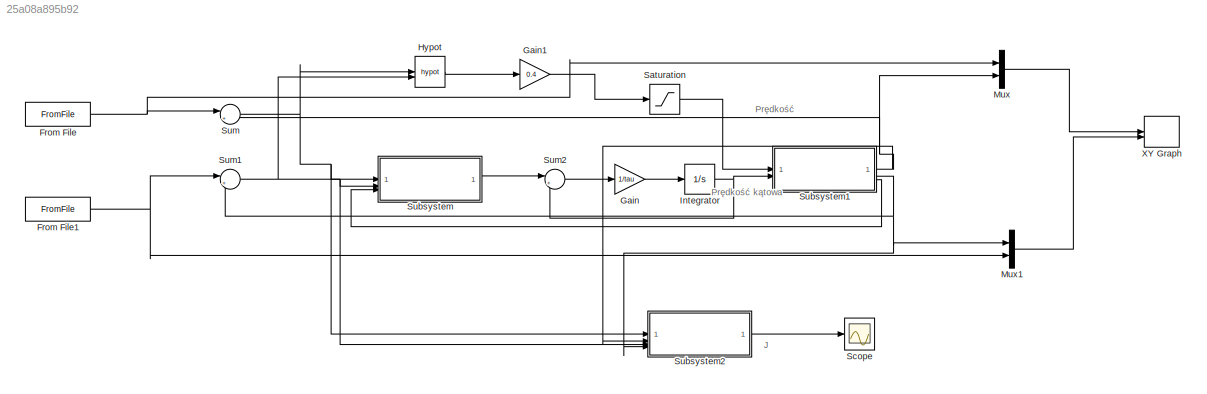
MODEL slx_25a08a895b92
KIND model
CONFIG AbsTol = auto
CONFIG EnableMultiTasking = off
CONFIG FixedStep = auto
CONFIG MaxStep = auto
CONFIG MinStep = auto
CONFIG RelTol = 1e-3
CONFIG SampleTimeConstraint = Unconstrained
CONFIG SolverName = VariableStepAuto
CONFIG StartTime = 0.0
CONFIG StopTime = 10.0
BLOCK [FromFile] From File
  SampleTime = 0
BLOCK [FromFile] From File1
  SampleTime = 0
BLOCK [Gain] Gain
  Gain = 1/tau
BLOCK [Gain] Gain1
  Gain = 0.4
BLOCK [Math] Hypot
  Operator = hypot
BLOCK [Integrator] Integrator
BLOCK [Mux] Mux
  DisplayOption = bar
  Inputs = 2
BLOCK [Mux] Mux1
  DisplayOption = bar
  Inputs = 2
BLOCK [Saturate] Saturation
BLOCK [Scope] Scope
  Floating = off
  NumInputPorts = 1
  ScopeSpecificationString = Simulink.scopes.TimeScopeBlockCfg('CurrentConfiguration', extmgr.ConfigurationSet(extmgr.Configuration('Core','General UI',true),extmgr.Configuration('Core','Source UI',true),extmgr.Configuration('Sources','WiredSimulink',true),extmgr.Configuration('Visuals','Time Domain',true),extmgr.Configuration('Tools','Plot Navigation',true),extmgr.Configuration('Tools','Measurements',true)),'Version','2023b'...<+1ch>
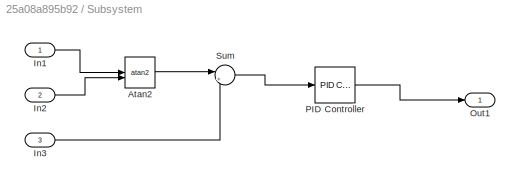
BLOCK [SubSystem] Subsystem
BLOCK [Trigonometry] Subsystem/Atan2
  Operator = atan2
BLOCK [Inport] Subsystem/In1
BLOCK [Inport] Subsystem/In2
  Port = 2
BLOCK [Inport] Subsystem/In3
  Port = 3
BLOCK [Outport] Subsystem/Out1
BLOCK [Reference] Subsystem/PID Controller  REF=slpidlib/PID Controller
  LibrarySourceBlock = simulink/Continuous/PID Controller
  SourceBlock = slpidlib/PID Controller
  SourceType = PID 1dof
BLOCK [Sum] Subsystem/Sum
  Inputs = |+-
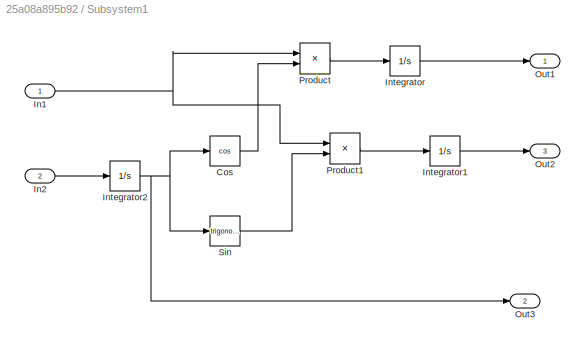
BLOCK [SubSystem] Subsystem1
BLOCK [Trigonometry] Subsystem1/Cos
  Operator = cos
BLOCK [Inport] Subsystem1/In1
BLOCK [Inport] Subsystem1/In2
  Port = 2
BLOCK [Integrator] Subsystem1/Integrator
BLOCK [Integrator] Subsystem1/Integrator1
BLOCK [Integrator] Subsystem1/Integrator2
BLOCK [Outport] Subsystem1/Out1
BLOCK [Outport] Subsystem1/Out2
  Port = 3
BLOCK [Outport] Subsystem1/Out3
  Port = 2
BLOCK [Product] Subsystem1/Product
BLOCK [Product] Subsystem1/Product1
BLOCK [Trigonometry] Subsystem1/Sin
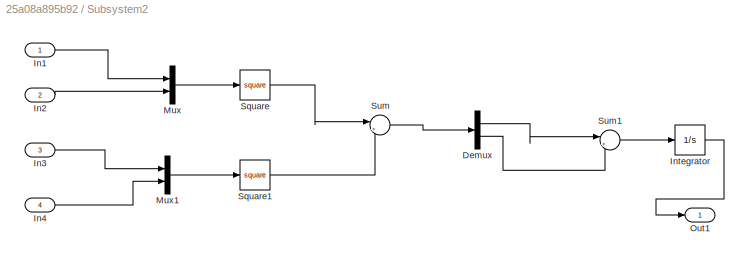
BLOCK [SubSystem] Subsystem2
BLOCK [Demux] Subsystem2/Demux
  Outputs = 2
BLOCK [Inport] Subsystem2/In1
BLOCK [Inport] Subsystem2/In2
  Port = 2
BLOCK [Inport] Subsystem2/In3
  Port = 3
BLOCK [Inport] Subsystem2/In4
  Port = 4
BLOCK [Integrator] Subsystem2/Integrator
BLOCK [Mux] Subsystem2/Mux
  DisplayOption = bar
  Inputs = 2
BLOCK [Mux] Subsystem2/Mux1
  DisplayOption = bar
  Inputs = 2
BLOCK [Outport] Subsystem2/Out1
BLOCK [Math] Subsystem2/Square
  Operator = square
BLOCK [Math] Subsystem2/Square1
  Operator = square
BLOCK [Sum] Subsystem2/Sum
  Inputs = |++
BLOCK [Sum] Subsystem2/Sum1
  Inputs = |++
BLOCK [Sum] Sum
  Inputs = |+-
BLOCK [Sum] Sum1
  Inputs = |+-
BLOCK [Sum] Sum2
  Inputs = |+-
BLOCK [Record] XY Graph
  CompatibilityTag = XY
  FileSettingsInternal = {"entries":[{"content":{"excelSettings":{"content":{},"type":"Streamout.ExcelSettings"}},"type":"Streamout.FileSettingStorage","uuid":""}],"packageUris":["http:\/\/schema.mathworks.com\/mf0\/streamout_blocks\/R2020a"],"version":"1.0"}
  Layout = [1 1]
  SignalsInternal = {"entries":[{"content":{"signals":[{"content":{"blockPath":[],"dimensions":[1],"domain":"","lineColor":"#a2142f","plots":[1],"port":1,"signalID":60,"signalName":"XY Graph:1"},"type":"RecordBlkView.Signal","uuid":""},{"content":{"blockPath":[],"dimensions":[1],"domain":"","lineColor":"#139fff","plots":[1],"port":2,"signalID":63,"signalName":"XY Graph:2"},"type":"RecordBlkView.Signal","uuid":""}]},"...<+142ch>
  VisualizationBindings = {"xyplotplugin":{"info":[{"series":[{"bindingParametersList":[{"parameter":"X-Axis","signalID":60,"signalName":"XY Graph:1"},{"parameter":"Y-Axis","signalID":63,"signalName":"XY Graph:2"}],"seriesID":3173}],"subplotID":1}]}}
ANNOTATION (root): J
ANNOTATION (root): Prędkość
ANNOTATION (root): Prędkość kątowa
NET From File1:1 -> Mux1:2, Sum1:1
NET From File:1 -> Mux:1, Sum:1
LINE Gain1:1 -> Saturation:1
LINE Gain:1 -> Integrator:1
LINE Hypot:1 -> Gain1:1
NET Integrator:1 -> Subsystem1:2, Sum2:2
LINE Mux1:1 -> XY Graph:2
LINE Mux:1 -> XY Graph:1
LINE Saturation:1 -> Subsystem1:1
LINE Subsystem/Atan2:1 -> Subsystem/Sum:1
LINE Subsystem/In1:1 -> Subsystem/Atan2:1
LINE Subsystem/In2:1 -> Subsystem/Atan2:2
LINE Subsystem/In3:1 -> Subsystem/Sum:2
LINE Subsystem/PID Controller:1 -> Subsystem/Out1:1
LINE Subsystem/Sum:1 -> Subsystem/PID Controller:1
LINE Subsystem1/Cos:1 -> Subsystem1/Product:2
NET Subsystem1/In1:1 -> Subsystem1/Product1:1, Subsystem1/Product:1
LINE Subsystem1/In2:1 -> Subsystem1/Integrator2:1
LINE Subsystem1/Integrator1:1 -> Subsystem1/Out2:1
NET Subsystem1/Integrator2:1 -> Subsystem1/Cos:1, Subsystem1/Out3:1, Subsystem1/Sin:1
LINE Subsystem1/Integrator:1 -> Subsystem1/Out1:1
LINE Subsystem1/Product1:1 -> Subsystem1/Integrator1:1
LINE Subsystem1/Product:1 -> Subsystem1/Integrator:1
LINE Subsystem1/Sin:1 -> Subsystem1/Product1:2
NET Subsystem1:1 -> Mux:2, Subsystem2:2, Sum:2
NET Subsystem1:2 -> Mux1:1, Subsystem2:4, Sum1:2
LINE Subsystem1:3 -> Subsystem:3
LINE Subsystem2/Demux:1 -> Subsystem2/Sum1:1
LINE Subsystem2/Demux:2 -> Subsystem2/Sum1:2
LINE Subsystem2/In1:1 -> Subsystem2/Mux:1
LINE Subsystem2/In2:1 -> Subsystem2/Mux:2
LINE Subsystem2/In3:1 -> Subsystem2/Mux1:1
LINE Subsystem2/In4:1 -> Subsystem2/Mux1:2
LINE Subsystem2/Integrator:1 -> Subsystem2/Out1:1
LINE Subsystem2/Mux1:1 -> Subsystem2/Square1:1
LINE Subsystem2/Mux:1 -> Subsystem2/Square:1
LINE Subsystem2/Square1:1 -> Subsystem2/Sum:2
LINE Subsystem2/Square:1 -> Subsystem2/Sum:1
LINE Subsystem2/Sum1:1 -> Subsystem2/Integrator:1
LINE Subsystem2/Sum:1 -> Subsystem2/Demux:1
LINE Subsystem2:1 -> Scope:1
LINE Subsystem:1 -> Sum2:1
NET Sum1:1 -> Hypot:2, Subsystem2:3, Subsystem:2
LINE Sum2:1 -> Gain:1
NET Sum:1 -> Hypot:1, Subsystem2:1, Subsystem:1
note: NET lines group one-source signal fan-out (src -> all destinations, sorted); 1:1 wires keep LINE
